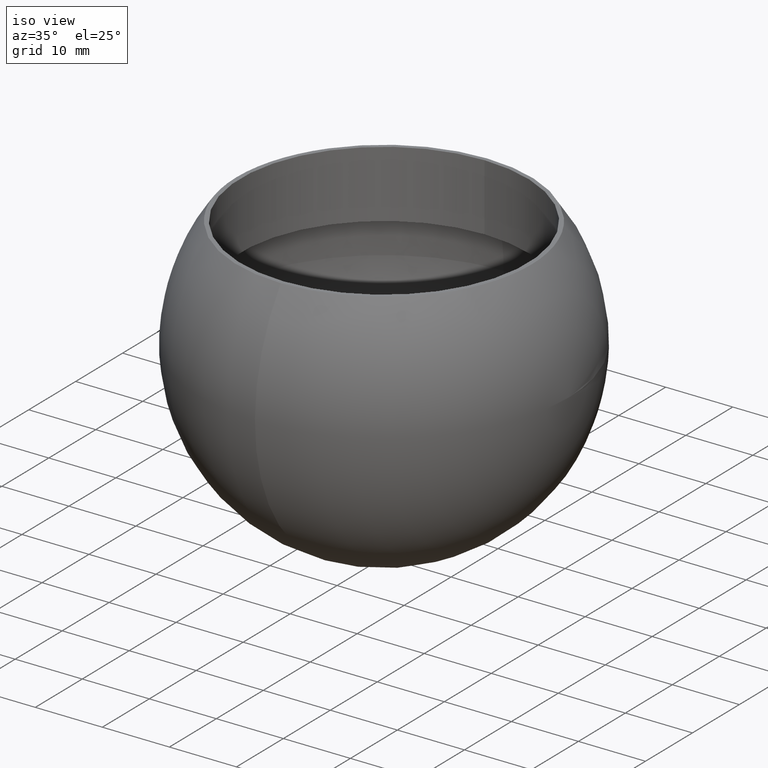
[diagram: clean part render]
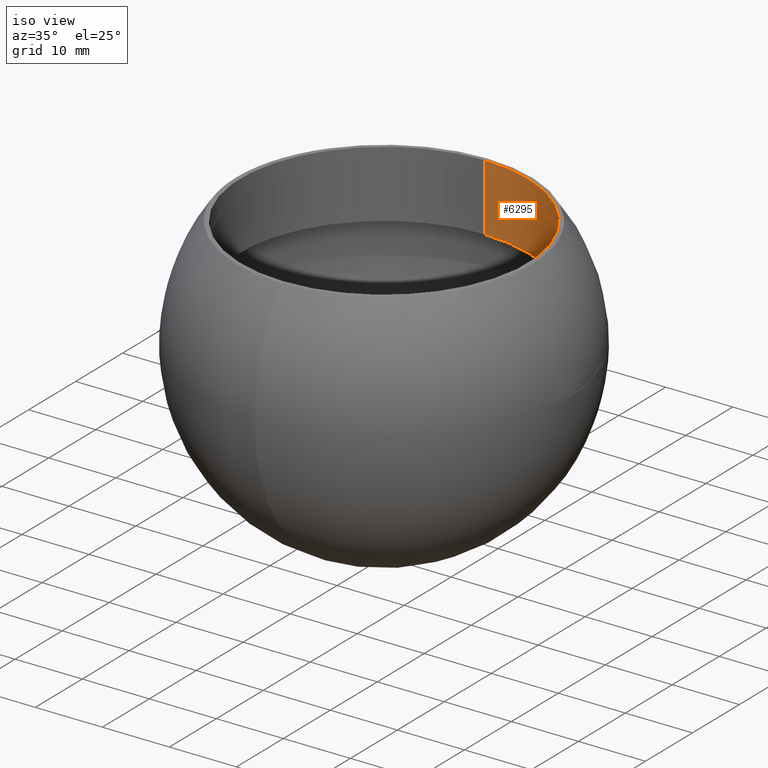
[diagram: same view with one face highlighted and labeled with its STEP entity id]
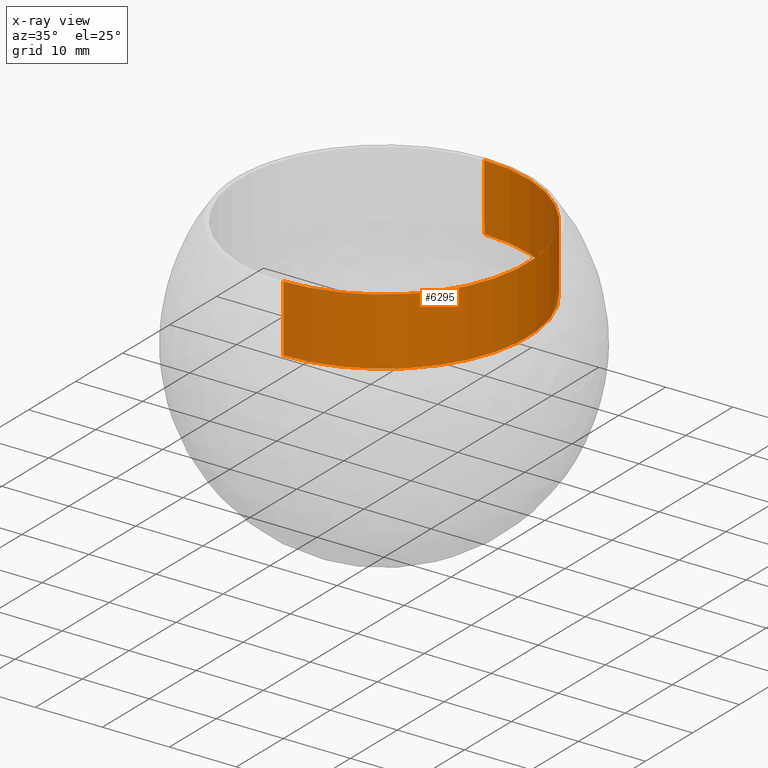
[diagram: x-ray of the same camera — body ghosted, the highlighted face saturated]
A machine part, iso view. The second image highlights one B-rep face of the part: STEP entity #6295.
The next image is the same camera in x-ray: the body ghosted, the highlighted face saturated — about 0% of this face is hidden behind the body in this view.
In plain terms, the highlighted cylindrical surface (partial cylindrical patch) has radius 21.4 mm, axis along (-0, -0, -1).
Its self-contained STEP definition (entity closure, byte-faithful):
#179 = CYLINDRICAL_SURFACE ( 'NONE', #12151, 21.39999999999999100 ) ;
#277 = VERTEX_POINT ( 'NONE', #10714 ) ;
#636 = EDGE_CURVE ( 'NONE', #6234, #6357, #10998, .T. ) ;
#903 = VECTOR ( 'NONE', #11480, 1000.000000000000000 ) ;
#1302 = EDGE_CURVE ( 'NONE', #277, #6357, #9274, .T. ) ;
#1720 = VERTEX_POINT ( 'NONE', #6617 ) ;
#1973 = CIRCLE ( 'NONE', #4198, 21.39999999999998800 ) ;
#2814 = CARTESIAN_POINT ( 'NONE',  ( 0.0000000000000000000, 4.250118982893686900E-015, 16.50000000000001800 ) ) ;
#3133 = FACE_OUTER_BOUND ( 'NONE', #9040, .T. ) ;
#3206 = CARTESIAN_POINT ( 'NONE',  ( 2.620744150175334700E-015, -21.39999999999998400, 16.50000000000002100 ) ) ;
#3798 = DIRECTION ( 'NONE',  ( -0.0000000000000000000, -2.114042506676481100E-016, -1.000000000000000000 ) ) ;
#4198 = AXIS2_PLACEMENT_3D ( 'NONE', #2814, #9447, #8476 ) ;
#4543 = DIRECTION ( 'NONE',  ( -0.0000000000000000000, -2.114042506676481100E-016, -1.000000000000000000 ) ) ;
#5268 = DIRECTION ( 'NONE',  ( 0.0000000000000000000, 1.000000000000000000, -1.621236893436268900E-016 ) ) ;
#5770 = CARTESIAN_POINT ( 'NONE',  ( 2.620744150175335100E-015, -21.39999999999999500, -27.49999999999999600 ) ) ;
#5964 = VECTOR ( 'NONE', #4543, 1000.000000000000000 ) ;
#6234 = VERTEX_POINT ( 'NONE', #3206 ) ;
#6295 = ADVANCED_FACE ( 'NONE', ( #3133 ), #179, .F. ) ;
#6357 = VERTEX_POINT ( 'NONE', #7323 ) ;
#6617 = CARTESIAN_POINT ( 'NONE',  ( 0.0000000000000000000, 21.39999999999999100, 16.50000000000001400 ) ) ;
#7323 = CARTESIAN_POINT ( 'NONE',  ( 2.620744150175335100E-015, -21.39999999999998800, 6.500000000000013300 ) ) ;
#7667 = ORIENTED_EDGE ( 'NONE', *, *, #1302, .T. ) ;
#7972 = AXIS2_PLACEMENT_3D ( 'NONE', #12103, #3798, #10317 ) ;
#7973 = EDGE_CURVE ( 'NONE', #1720, #277, #8464, .T. ) ;
#8359 = ORIENTED_EDGE ( 'NONE', *, *, #636, .F. ) ;
#8464 = LINE ( 'NONE', #10138, #5964 ) ;
#8476 = DIRECTION ( 'NONE',  ( 0.0000000000000000000, 1.000000000000000000, -1.621236893436269100E-016 ) ) ;
#9040 = EDGE_LOOP ( 'NONE', ( #8359, #10292, #10366, #7667 ) ) ;
#9274 = CIRCLE ( 'NONE', #7972, 21.39999999999999100 ) ;
#9282 = EDGE_CURVE ( 'NONE', #1720, #6234, #1973, .T. ) ;
#9447 = DIRECTION ( 'NONE',  ( -0.0000000000000000000, -2.114042506676481100E-016, -1.000000000000000000 ) ) ;
#9803 = DIRECTION ( 'NONE',  ( -0.0000000000000000000, -2.114042506676481100E-016, -1.000000000000000000 ) ) ;
#10138 = CARTESIAN_POINT ( 'NONE',  ( 0.0000000000000000000, 21.39999999999998800, -27.50000000000000400 ) ) ;
#10292 = ORIENTED_EDGE ( 'NONE', *, *, #9282, .F. ) ;
#10317 = DIRECTION ( 'NONE',  ( 0.0000000000000000000, 1.000000000000000000, -2.026546116795336100E-016 ) ) ;
#10366 = ORIENTED_EDGE ( 'NONE', *, *, #7973, .T. ) ;
#10714 = CARTESIAN_POINT ( 'NONE',  ( 0.0000000000000000000, 21.39999999999999500, 6.500000000000005300 ) ) ;
#10998 = LINE ( 'NONE', #5770, #903 ) ;
#11480 = DIRECTION ( 'NONE',  ( -0.0000000000000000000, -2.114042506676481100E-016, -1.000000000000000000 ) ) ;
#11707 = CARTESIAN_POINT ( 'NONE',  ( 0.0000000000000000000, -5.051668046482832700E-015, -27.50000000000000000 ) ) ;
#12103 = CARTESIAN_POINT ( 'NONE',  ( 0.0000000000000000000, 2.136076476217204500E-015, 6.500000000000008900 ) ) ;
#12151 = AXIS2_PLACEMENT_3D ( 'NONE', #11707, #9803, #5268 ) ;